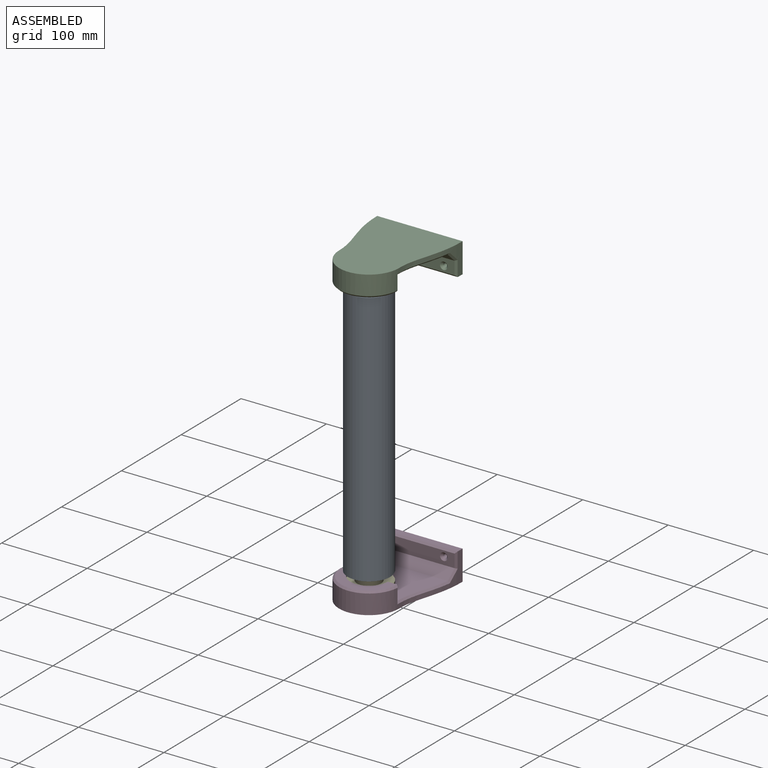
[diagram: assembled view]
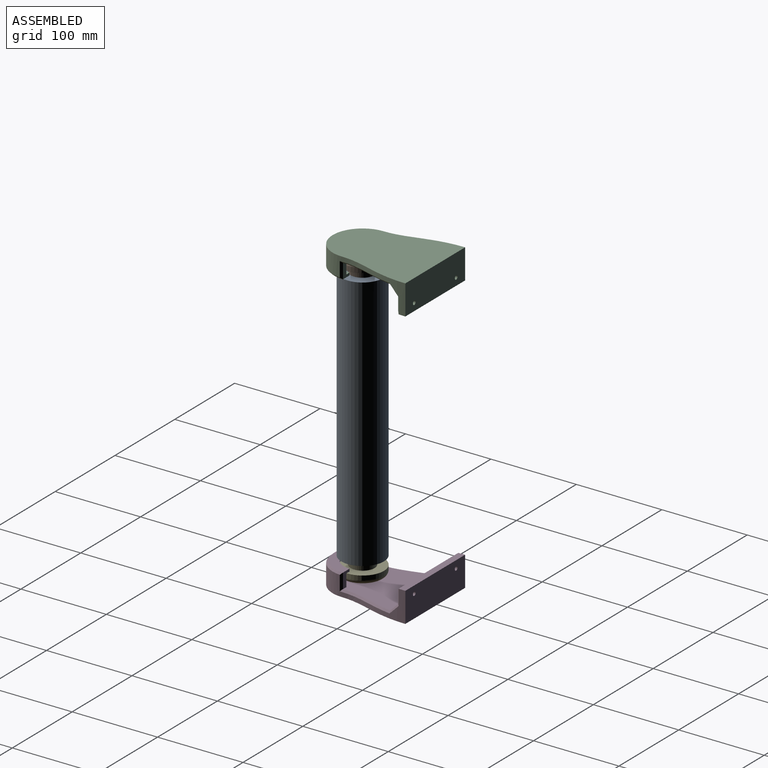
[diagram: assembled view, second angle]
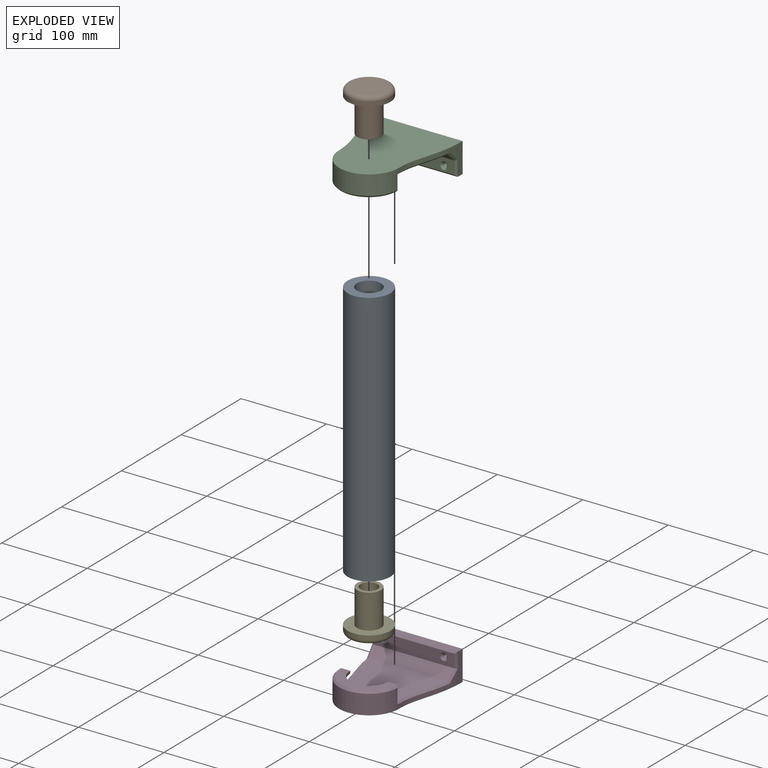
[diagram: exploded view]
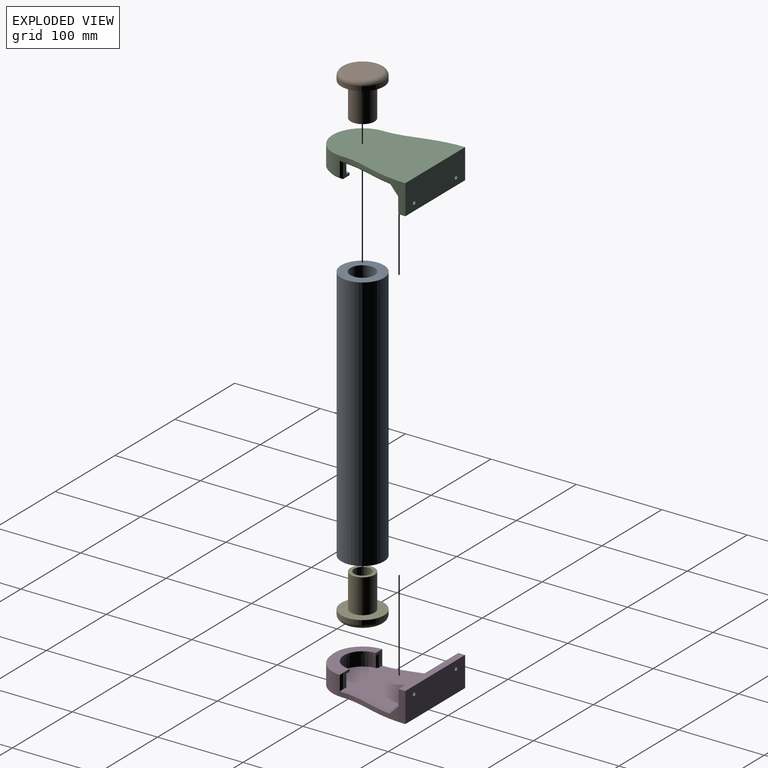
[diagram: exploded view, second angle]
ASSEMBLY  parts=5 mates=4
PART A: 4 faces, bbox 300x50x50 mm
  f0: cylinder r=14.25mm len=300mm, axis (-1,0,0), area 26860.6mm2, adj f2,f3
  f1: cylinder r=25mm len=300mm, axis (-1,0,0), area 47123.9mm2, adj f2,f3
  f2: plane 50x50mm, normal (1,0,0), area 1325.6mm2, adj f0,f1
  f3: plane 50x50mm, normal (-1,0,0), area 1325.6mm2, adj f0,f1
PART B: 9 faces, bbox 54.1x54.1x50 mm
  f0: plane 40x40mm, normal (0,0,-1), area 1256.6mm2, adj f7
  f1: plane 10x10mm, normal (0,0,1), area 78.5mm2, adj f8
  f2: cylinder r=10mm len=35mm, axis (0,0,-1), area 2199.1mm2, adj f3,f8
  f3: plane 28x28mm, normal (0,0,1), area 301.6mm2, adj f2,f4
  f4: cylinder r=14mm len=40mm, axis (0,0,-1), area 3518.6mm2, adj f3,f5
  f5: plane 50x50mm, normal (0,0,1), area 1347.7mm2, adj f4,f6
  f6: cylinder r=25mm len=50mm, axis (0,0,-1), area 785.4mm2, adj f5,f7
  f7: torus R=20mm, axis (0,0,-1), area 1144mm2, adj f0,f6
  f8: cone r=10mm half-angle=45deg, axis (0,0,1), area 333.2mm2, adj f1,f2
PART C: 34 faces, bbox 100.1x120.1x35.1 mm
  f0: cylinder r=25mm len=49.84mm, axis (0,0,-1), area 1006.9mm2, adj f4,f24,f25,f33
  f1: extruded ~75x14.68mm, area 458.5mm2, adj f2,f5,f11,f20,f21
  f2: cylinder r=35mm len=70mm, axis (0,0,-1), area 2433.5mm2, adj f1,f3,f5,f21,f23,f26,f27,f28
  f3: extruded ~75x14.68mm, area 458.5mm2, adj f2,f5,f12,f22,f23
  f4: plane 92.92x90mm, normal (0,0,1), area 6068.4mm2, adj f0,f6,f7,f14,f21,f23,f24,f25
  f5: plane 120x99.98mm, normal (0,0,-1), area 9241.3mm2, adj f1,f2,f3,f10,f11,f12
  f6: plane 17.5x10.79mm, normal (0,1,0), area 115.4mm2, adj f4,f8,f24,f26,f31,f32
  f7: plane 17.5x10.79mm, normal (0,1,0), area 115.4mm2, adj f4,f8,f25,f28,f31,f32
  f8: plane 65.71x32.86mm, normal (0,0,1), area 935.4mm2, adj f6,f7,f26,f27,f28,f31
  f9: plane 95.29x15.4mm, normal (0,-1,0), area 1340.9mm2, adj f14,f16,f18,f19,f29,f30
  f10: plane 99.98x35mm, normal (0,1,0), area 3467.3mm2, adj f5,f11,f12,f13,f15,f17
  f11: extruded ~35x10mm, area 311.1mm2, adj f1,f5,f10,f13,f19,f20,f30
  f12: extruded ~35x10mm, area 311.1mm2, adj f3,f5,f10,f13,f19,f22,f29
  f13: plane 99.98x7.92mm, normal (0,0,1), area 788.6mm2, adj f10,f11,f12,f19
  f14: plane 95.29x10.21mm, normal (0,-0.71,0.71), area 1336.3mm2, adj f4,f9,f20,f21,f22,f23
  f15: cylinder r=2.25mm len=7.77mm, axis (0,-1,0), area 109.8mm2, adj f10,f16
  f16: cone r=2.25mm half-angle=45deg, axis (0,-1,0), area 66.7mm2, adj f9,f15
  f17: cylinder r=2.25mm len=7.77mm, axis (0,-1,0), area 109.8mm2, adj f10,f18
  f18: cone r=2.25mm half-angle=45deg, axis (0,-1,0), area 66.7mm2, adj f9,f17
  f19: plane 99.55x2.1mm, normal (0,-0.71,0.71), area 289.6mm2, adj f9,f11,f12,f13,f29,f30
  f20: bspline ~13.41x13.26mm, area 43.8mm2, adj f1,f11,f14,f21,f30
  f21: bspline ~72.59x16.22mm, area 201.9mm2, adj f1,f2,f4,f14,f20,f26
  f22: bspline ~13.41x13.26mm, area 43.8mm2, adj f3,f12,f14,f23,f29
  f23: bspline ~72.59x16.22mm, area 201.9mm2, adj f2,f3,f4,f14,f22,f28
  f24: plane 14.53x3.28mm, normal (0.68,0.73,0), area 42.9mm2, adj f0,f4,f6,f32,f33
  f25: plane 14.53x3.28mm, normal (-0.68,0.73,0), area 42.9mm2, adj f0,f4,f7,f32,f33
  f26: plane 19.61x2.37mm, normal (-0.73,0.68,0), area 54.6mm2, adj f2,f4,f6,f8,f21,f27
  f27: cone r=32.86mm half-angle=45deg, axis (0,0,-1), area 316.1mm2, adj f2,f8,f26,f28
  f28: plane 19.61x2.37mm, normal (0.73,0.68,0), area 54.6mm2, adj f2,f4,f7,f8,f23,f27
  f29: plane 18.21x2.14mm, normal (0.69,-0.73,0), area 49.2mm2, adj f9,f12,f19,f22
  f30: plane 18.21x2.14mm, normal (-0.69,-0.73,0), area 49.2mm2, adj f9,f11,f19,f20
  f31: cylinder r=22mm len=44mm, axis (0,0,1), area 207.3mm2, adj f6,f7,f8,f32
  f32: plane 54.12x24mm, normal (0,0,-1), area 153.5mm2, adj f6,f7,f24,f25,f31,f33
  f33: cone r=25mm half-angle=45deg, axis (0,0,-1), area 101.8mm2, adj f0,f24,f25,f32
PART D: same geometry as C
PART E: same geometry as B
PLACE A rot(axis=(0,1,0),90deg) t=(0,0,182.86)mm
PLACE B rot(axis=(0.71,0.71,0),180deg) t=(0,0,352.86)mm
PLACE C rot(axis=(0,1,0),180deg) t=(0,0,362.11)mm
PLACE D t=(0,0,1.86)mm
PLACE E rot(axis=(0,0,1),90deg) t=(0,0,12.86)mm
MATE revolute E.f2 <-> A.f0  axis (0,0,-1) through (0,0,42.86)mm
MATE revolute B.f2 <-> A.f0  axis (0,0,1) through (0,0,322.86)mm
MATE revolute C.f0 <-> B.f2  axis (0,0,1) through (0,0,347.86)mm
MATE revolute E.f2 <-> D.f0  axis (0,0,-1) through (0,0,17.86)mm
